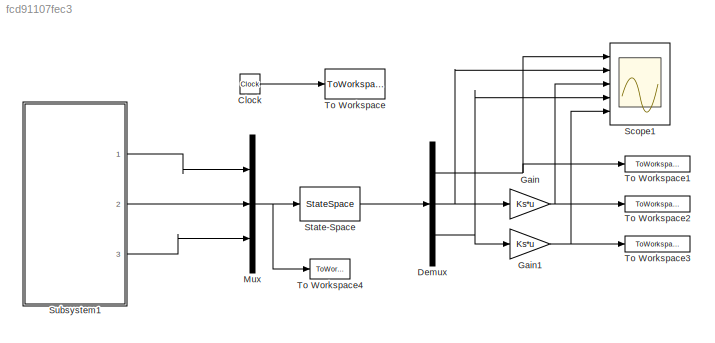
MODEL slx_fcd91107fec3
KIND model
CONFIG AbsTol = auto
CONFIG EnableMultiTasking = off
CONFIG FixedStep = auto
CONFIG MaxStep = auto
CONFIG MinStep = auto
CONFIG RelTol = 1e-3
CONFIG SampleTimeConstraint = Unconstrained
CONFIG Solver = ode23t
CONFIG SolverName = ode23t
CONFIG StartTime = 0.0
CONFIG StopTime = 5
BLOCK [Clock] Clock
BLOCK [Demux] Demux
  DisplayOption = bar
  Outputs = 3
  Ports = [1, 3]
BLOCK [Gain] Gain
  Gain = Ks*u
  OutDataTypeStr = Inherit: Inherit via internal rule
  ParamDataTypeStr = Inherit: Inherit via internal rule
  SaturateOnIntegerOverflow = off
BLOCK [Gain] Gain1
  Gain = Ks*u
  OutDataTypeStr = Inherit: Inherit via internal rule
  ParamDataTypeStr = Inherit: Inherit via internal rule
  SaturateOnIntegerOverflow = off
BLOCK [Mux] Mux
  DisplayOption = bar
  Inputs = 3
  Ports = [3, 1]
BLOCK [Scope] Scope1
  NumInputPorts = 5
  Ports = [5]
  ScopeSpecificationString = Simulink.scopes.TimeScopeBlockCfg('CurrentConfiguration', extmgr.ConfigurationSet(extmgr.Configuration('Core','General UI',true),extmgr.Configuration('Core','Source UI',true),extmgr.Configuration('Sources','WiredSimulink',true,'DataLoggingVariableName','ScopeData1','DataLogging',true,'DataLoggingSaveFormat','StructureWithTime'),extmgr.Configuration('Visuals','Time Domain',true,'SerializedDisplays'...<+1656ch>
BLOCK [StateSpace] State-Space
  A = [zeros(3,3) eye(3)/(3*Cf) -eye(3)/(3*Cf); -eye(3)/Lf zeros(3,3) zeros(3,3);eye(3,3)/Lload zeros(3,3) -eye(3)*Rload/Lload]
  B = [zeros(3,3); eye(3)/Lf; zeros(3,3)]
  C = [eye(9)]
  D = [zeros(9,3)]
  InitialCondition = 0
  Ports = [1, 1]
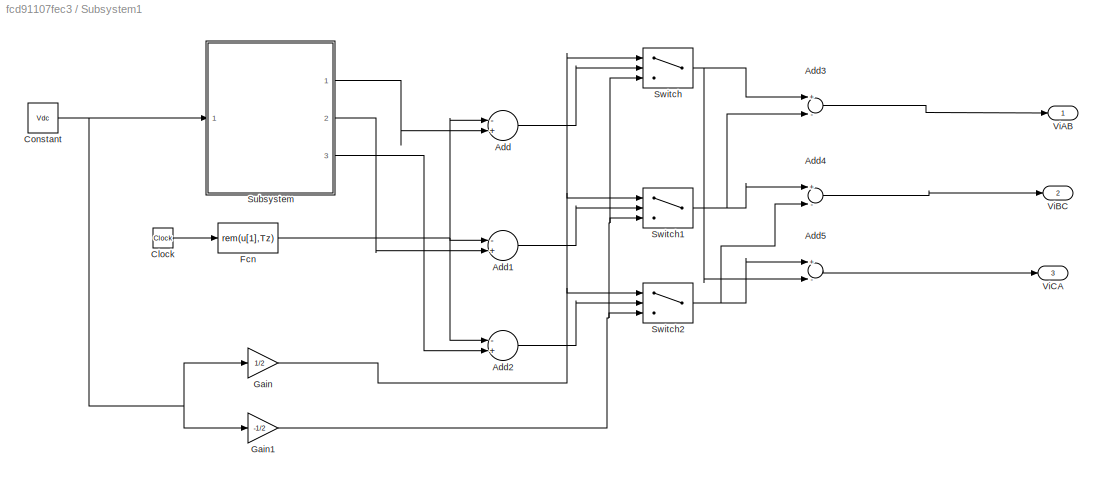
BLOCK [SubSystem] Subsystem1
  Ports = [0, 3]
  RequestExecContextInheritance = off
  Variant = off
BLOCK [Sum] Subsystem1/Add
  InputSameDT = off
  Inputs = -+
  OutDataTypeStr = Inherit: Inherit via internal rule
  Ports = [2, 1]
  SaturateOnIntegerOverflow = off
BLOCK [Sum] Subsystem1/Add1
  InputSameDT = off
  Inputs = -+
  OutDataTypeStr = Inherit: Inherit via internal rule
  Ports = [2, 1]
  SaturateOnIntegerOverflow = off
BLOCK [Sum] Subsystem1/Add2
  InputSameDT = off
  Inputs = -+
  OutDataTypeStr = Inherit: Inherit via internal rule
  Ports = [2, 1]
  SaturateOnIntegerOverflow = off
BLOCK [Sum] Subsystem1/Add3
  InputSameDT = off
  Inputs = +-
  OutDataTypeStr = Inherit: Inherit via internal rule
  Ports = [2, 1]
  SaturateOnIntegerOverflow = off
BLOCK [Sum] Subsystem1/Add4
  InputSameDT = off
  Inputs = +-
  OutDataTypeStr = Inherit: Inherit via internal rule
  Ports = [2, 1]
  SaturateOnIntegerOverflow = off
BLOCK [Sum] Subsystem1/Add5
  InputSameDT = off
  Inputs = +-
  OutDataTypeStr = Inherit: Inherit via internal rule
  Ports = [2, 1]
  SaturateOnIntegerOverflow = off
BLOCK [Clock] Subsystem1/Clock
BLOCK [Constant] Subsystem1/Constant
  Value = Vdc
BLOCK [Fcn] Subsystem1/Fcn
  Expr = rem(u[1],Tz)
BLOCK [Gain] Subsystem1/Gain
  Gain = 1/2
  OutDataTypeStr = Inherit: Inherit via internal rule
  ParamDataTypeStr = Inherit: Inherit via internal rule
  SaturateOnIntegerOverflow = off
BLOCK [Gain] Subsystem1/Gain1
  Gain = -1/2
  OutDataTypeStr = Inherit: Inherit via internal rule
  ParamDataTypeStr = Inherit: Inherit via internal rule
  SaturateOnIntegerOverflow = off
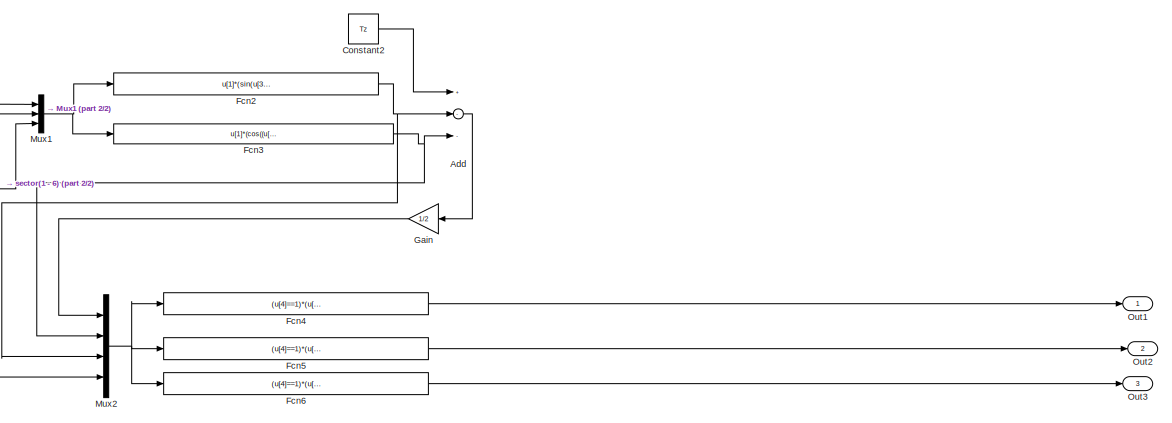
[diagram: Subsystem1/Subsystem - part 1/2, center side, full height]
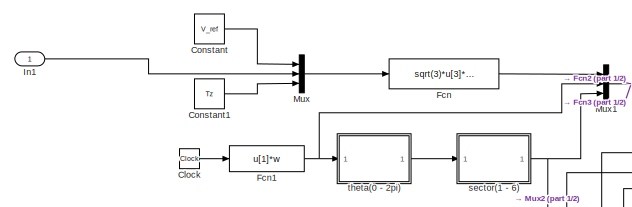
[diagram: Subsystem1/Subsystem - part 2/2, middle left region]
BLOCK [SubSystem] Subsystem1/Subsystem
  Ports = [1, 3]
  RequestExecContextInheritance = off
  Variant = off
BLOCK [Sum] Subsystem1/Subsystem/Add
  InputSameDT = off
  Inputs = +--
  OutDataTypeStr = Inherit: Inherit via internal rule
  Ports = [3, 1]
  SaturateOnIntegerOverflow = off
BLOCK [Clock] Subsystem1/Subsystem/Clock
BLOCK [Constant] Subsystem1/Subsystem/Constant
  Value = V_ref
BLOCK [Constant] Subsystem1/Subsystem/Constant1
  Value = Tz
BLOCK [Constant] Subsystem1/Subsystem/Constant2
  Value = Tz
BLOCK [Fcn] Subsystem1/Subsystem/Fcn
  Expr = sqrt(3)*u[3]*u[1]/u[2]
BLOCK [Fcn] Subsystem1/Subsystem/Fcn1
  Expr = u[1]*w
BLOCK [Fcn] Subsystem1/Subsystem/Fcn2
  Expr = u[1]*(sin(u[3]*pi/3)*cos(u[2])-cos(u[3]*pi/3)*sin(u[2]))
BLOCK [Fcn] Subsystem1/Subsystem/Fcn3
  Expr = u[1]*(cos((u[3]-1)*(pi/3))*sin(u[2])-sin((u[3]-1)*(pi/3))*cos(u[2]))
BLOCK [Fcn] Subsystem1/Subsystem/Fcn4
  Expr = (u[4]==1)*(u[1]+u[2]+u[3])+(u[4]==2)*(u[1]+u[2]+u[3])+(u[4]==3)*(u[3]+u[1])+(u[4]==4)*(u[1])+(u[4]==5)*(u[1])+(u[4]==6)*(u[1]+u[2])
BLOCK [Fcn] Subsystem1/Subsystem/Fcn5
  Expr = (u[4]==1)*(u[1])+(u[4]==2)*(u[1]+u[2])+(u[4]==3)*(u[1]+u[2]+u[3])+(u[4]==4)*(u[1]+u[2]+u[3])+(u[4]==5)*(u[1]+u[3])+(u[4]==6)*(u[1])
BLOCK [Fcn] Subsystem1/Subsystem/Fcn6
  Expr = (u[4]==1)*(u[1]+u[3])+(u[4]==2)*(u[1])+(u[4]==3)*(u[1])+(u[4]==4)*(u[1]+u[2])+(u[4]==5)*(u[1]+u[2]+u[3])+(u[4]==6)*(u[1]+u[2]+u[3])
BLOCK [Gain] Subsystem1/Subsystem/Gain
  Gain = 1/2
  OutDataTypeStr = Inherit: Inherit via internal rule
  ParamDataTypeStr = Inherit: Inherit via internal rule
  SaturateOnIntegerOverflow = off
BLOCK [Inport] Subsystem1/Subsystem/In1
  IconDisplay = Port number
BLOCK [Mux] Subsystem1/Subsystem/Mux
  DisplayOption = bar
  Inputs = 3
  Ports = [3, 1]
BLOCK [Mux] Subsystem1/Subsystem/Mux1
  DisplayOption = bar
  Inputs = 3
  Ports = [3, 1]
BLOCK [Mux] Subsystem1/Subsystem/Mux2
  DisplayOption = bar
  Ports = [4, 1]
BLOCK [Outport] Subsystem1/Subsystem/Out1
  IconDisplay = Port number
BLOCK [Outport] Subsystem1/Subsystem/Out2
  IconDisplay = Port number
  Port = 2
BLOCK [Outport] Subsystem1/Subsystem/Out3
  IconDisplay = Port number
  Port = 3
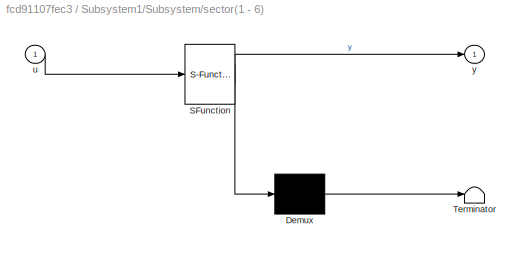
BLOCK [SubSystem] Subsystem1/Subsystem/sector(1 - 6)
  ErrorFcn = Stateflow.Translate.translate
  PermitHierarchicalResolution = ExplicitOnly
  Ports = [1, 1]
  RequestExecContextInheritance = off
  SFBlockType = MATLAB Function
  TreatAsAtomicUnit = on
  Variant = off
BLOCK [Demux] Subsystem1/Subsystem/sector(1 - 6)/ Demux 
  Outputs = 1
  Ports = [1, 1]
BLOCK [S-Function] Subsystem1/Subsystem/sector(1 - 6)/ SFunction 
  EnableBusSupport = on
  FunctionName = sf_sfun
  PortCounts = [1 2]
  Ports = [1, 2]
  SFcnIsStateOwnerBlock = off
  SFunctionDeploymentMode = off
  Tag = Stateflow S-Function Simulink_vector 1
BLOCK [Terminator] Subsystem1/Subsystem/sector(1 - 6)/ Terminator 
BLOCK [Inport] Subsystem1/Subsystem/sector(1 - 6)/u
  IconDisplay = Port number
BLOCK [Outport] Subsystem1/Subsystem/sector(1 - 6)/y
  IconDisplay = Port number
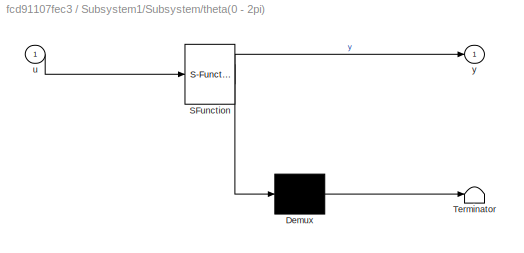
BLOCK [SubSystem] Subsystem1/Subsystem/theta(0 - 2pi)
  ErrorFcn = Stateflow.Translate.translate
  PermitHierarchicalResolution = ExplicitOnly
  Ports = [1, 1]
  RequestExecContextInheritance = off
  SFBlockType = MATLAB Function
  TreatAsAtomicUnit = on
  Variant = off
BLOCK [Demux] Subsystem1/Subsystem/theta(0 - 2pi)/ Demux 
  Outputs = 1
  Ports = [1, 1]
BLOCK [S-Function] Subsystem1/Subsystem/theta(0 - 2pi)/ SFunction 
  EnableBusSupport = on
  FunctionName = sf_sfun
  PortCounts = [1 2]
  Ports = [1, 2]
  SFcnIsStateOwnerBlock = off
  SFunctionDeploymentMode = off
  Tag = Stateflow S-Function Simulink_vector 2
BLOCK [Terminator] Subsystem1/Subsystem/theta(0 - 2pi)/ Terminator 
BLOCK [Inport] Subsystem1/Subsystem/theta(0 - 2pi)/u
  IconDisplay = Port number
BLOCK [Outport] Subsystem1/Subsystem/theta(0 - 2pi)/y
  IconDisplay = Port number
BLOCK [Switch] Subsystem1/Switch
  Criteria = u2 > Threshold
  InputSameDT = off
  SaturateOnIntegerOverflow = off
BLOCK [Switch] Subsystem1/Switch1
  Criteria = u2 > Threshold
  InputSameDT = off
  SaturateOnIntegerOverflow = off
BLOCK [Switch] Subsystem1/Switch2
  Criteria = u2 > Threshold
  InputSameDT = off
  SaturateOnIntegerOverflow = off
BLOCK [Outport] Subsystem1/ViAB
  IconDisplay = Port number
BLOCK [Outport] Subsystem1/ViBC
  IconDisplay = Port number
  Port = 2
BLOCK [Outport] Subsystem1/ViCA
  IconDisplay = Port number
  Port = 3
BLOCK [ToWorkspace] To Workspace
  FixptAsFi = on
  MaxDataPoints = inf
  Ports = [1]
  SampleTime = -1
  Save2DSignal = 3-D array (concatenate along third dimension)
  VariableName = t
BLOCK [ToWorkspace] To Workspace1
  FixptAsFi = on
  MaxDataPoints = inf
  Ports = [1]
  SampleTime = -1
  Save2DSignal = 3-D array (concatenate along third dimension)
  VariableName = VL
BLOCK [ToWorkspace] To Workspace2
  FixptAsFi = on
  MaxDataPoints = inf
  Ports = [1]
  SampleTime = -1
  Save2DSignal = 3-D array (concatenate along third dimension)
  VariableName = IiABC
BLOCK [ToWorkspace] To Workspace3
  FixptAsFi = on
  MaxDataPoints = inf
  Ports = [1]
  SampleTime = -1
  Save2DSignal = 3-D array (concatenate along third dimension)
  VariableName = ILABC
BLOCK [ToWorkspace] To Workspace4
  FixptAsFi = on
  MaxDataPoints = inf
  Ports = [1]
  SampleTime = -1
  Save2DSignal = 3-D array (concatenate along third dimension)
  VariableName = Vi
LINE Clock:1 -> To Workspace:1
NET Demux:1 -> Scope1:1, To Workspace1:1
NET Demux:2 -> Gain:1, Scope1:2
NET Demux:3 -> Gain1:1, Scope1:4
NET Gain1:1 -> Scope1:5, To Workspace3:1
NET Gain:1 -> Scope1:3, To Workspace2:1
NET Mux:1 -> State-Space:1, To Workspace4:1
LINE State-Space:1 -> Demux:1
LINE Subsystem1/Add1:1 -> Subsystem1/Switch1:2
LINE Subsystem1/Add2:1 -> Subsystem1/Switch2:2
LINE Subsystem1/Add3:1 -> Subsystem1/ViAB:1
LINE Subsystem1/Add4:1 -> Subsystem1/ViBC:1
LINE Subsystem1/Add5:1 -> Subsystem1/ViCA:1
LINE Subsystem1/Add:1 -> Subsystem1/Switch:2
LINE Subsystem1/Clock:1 -> Subsystem1/Fcn:1
NET Subsystem1/Constant:1 -> Subsystem1/Gain1:1, Subsystem1/Gain:1, Subsystem1/Subsystem:1
NET Subsystem1/Fcn:1 -> Subsystem1/Add1:1, Subsystem1/Add2:1, Subsystem1/Add:1
NET Subsystem1/Gain1:1 -> Subsystem1/Switch1:3, Subsystem1/Switch2:3, Subsystem1/Switch:3
NET Subsystem1/Gain:1 -> Subsystem1/Switch1:1, Subsystem1/Switch2:1, Subsystem1/Switch:1
LINE Subsystem1/Subsystem/Add:1 -> Subsystem1/Subsystem/Gain:1
LINE Subsystem1/Subsystem/Clock:1 -> Subsystem1/Subsystem/Fcn1:1
LINE Subsystem1/Subsystem/Constant1:1 -> Subsystem1/Subsystem/Mux:3
LINE Subsystem1/Subsystem/Constant2:1 -> Subsystem1/Subsystem/Add:1
LINE Subsystem1/Subsystem/Constant:1 -> Subsystem1/Subsystem/Mux:1
NET Subsystem1/Subsystem/Fcn1:1 -> Subsystem1/Subsystem/Mux1:2, Subsystem1/Subsystem/theta(0 - 2pi):1
NET Subsystem1/Subsystem/Fcn2:1 -> Subsystem1/Subsystem/Add:2, Subsystem1/Subsystem/Mux2:3
NET Subsystem1/Subsystem/Fcn3:1 -> Subsystem1/Subsystem/Add:3, Subsystem1/Subsystem/Mux2:2
LINE Subsystem1/Subsystem/Fcn4:1 -> Subsystem1/Subsystem/Out1:1
LINE Subsystem1/Subsystem/Fcn5:1 -> Subsystem1/Subsystem/Out2:1
LINE Subsystem1/Subsystem/Fcn6:1 -> Subsystem1/Subsystem/Out3:1
LINE Subsystem1/Subsystem/Fcn:1 -> Subsystem1/Subsystem/Mux1:1
LINE Subsystem1/Subsystem/Gain:1 -> Subsystem1/Subsystem/Mux2:1
LINE Subsystem1/Subsystem/In1:1 -> Subsystem1/Subsystem/Mux:2
NET Subsystem1/Subsystem/Mux1:1 -> Subsystem1/Subsystem/Fcn2:1, Subsystem1/Subsystem/Fcn3:1
NET Subsystem1/Subsystem/Mux2:1 -> Subsystem1/Subsystem/Fcn4:1, Subsystem1/Subsystem/Fcn5:1, Subsystem1/Subsystem/Fcn6:1
LINE Subsystem1/Subsystem/Mux:1 -> Subsystem1/Subsystem/Fcn:1
NET Subsystem1/Subsystem/sector(1 - 6):1 -> Subsystem1/Subsystem/Mux1:3, Subsystem1/Subsystem/Mux2:4
LINE Subsystem1/Subsystem/theta(0 - 2pi):1 -> Subsystem1/Subsystem/sector(1 - 6):1
LINE Subsystem1/Subsystem:1 -> Subsystem1/Add:2
LINE Subsystem1/Subsystem:2 -> Subsystem1/Add1:2
LINE Subsystem1/Subsystem:3 -> Subsystem1/Add2:2
NET Subsystem1/Switch1:1 -> Subsystem1/Add3:2, Subsystem1/Add4:1
NET Subsystem1/Switch2:1 -> Subsystem1/Add4:2, Subsystem1/Add5:1
NET Subsystem1/Switch:1 -> Subsystem1/Add3:1, Subsystem1/Add5:2
LINE Subsystem1:1 -> Mux:1
LINE Subsystem1:2 -> Mux:2
LINE Subsystem1:3 -> Mux:3
note: NET lines group one-source signal fan-out (src -> all destinations, sorted); 1:1 wires keep LINE
CHART Subsystem1/Subsystem/sector(1 - 6) states=1 transitions=1
  STATE_LABEL 'eML_blk_kernel()'
  STATE_LABEL 'SCRIPT:\nfunction y = fcn(u)\n%#codegen\n\ny = 1+ fix(u/(pi/3+1.e-30));'
CHART Subsystem1/Subsystem/theta(0 - 2pi) states=1 transitions=1
  STATE_LABEL 'eML_blk_kernel()'
  STATE_LABEL 'SCRIPT:\nfunction y = fcn(u)\n%#codegen\n\ny = mod(u,2*pi);'
